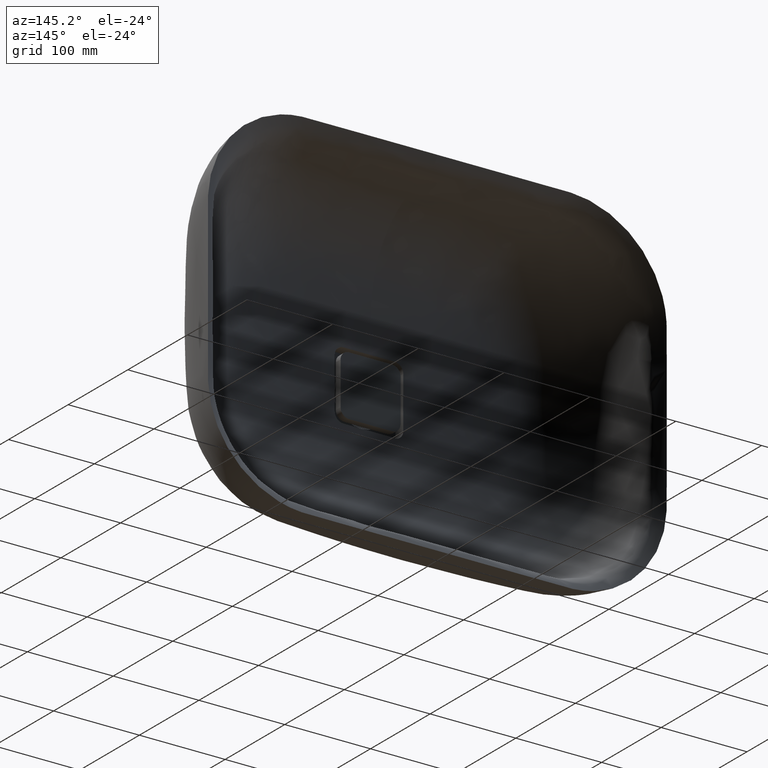
[diagram: clean part render]
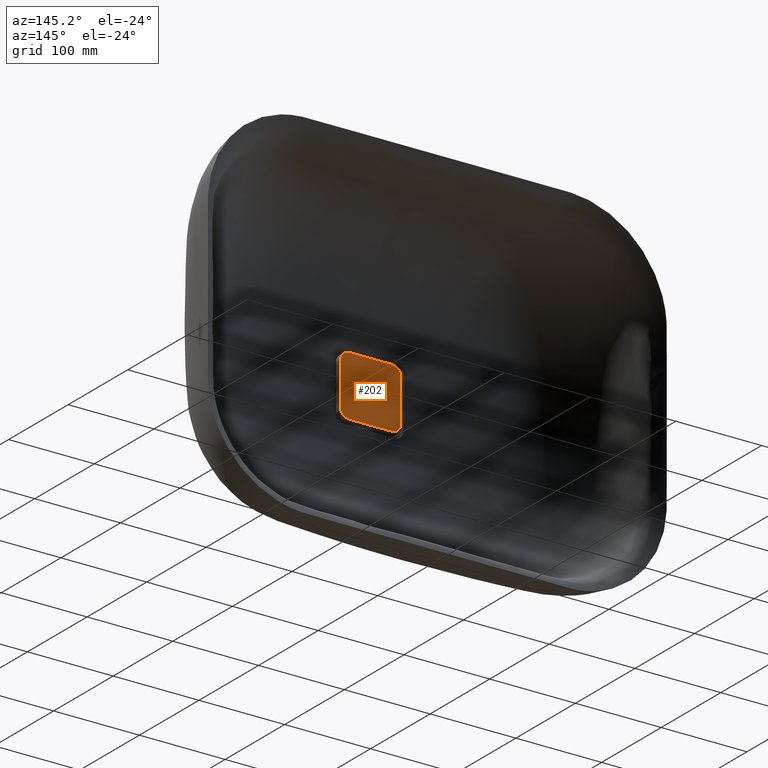
[diagram: same view with one face highlighted and labeled with its STEP entity id]
A machine part, auxiliary view. The second image highlights one B-rep face of the part: STEP entity #202.
In plain terms, the highlighted planar face has unit normal (0, -1, 0).
Its self-contained STEP definition (entity closure, byte-faithful):
#202 = ADVANCED_FACE ( 'NONE', ( #13835 ), #9818, .F. ) ;
#451 = AXIS2_PLACEMENT_3D ( 'NONE', #3241, #4367, #9676 ) ;
#725 = EDGE_CURVE ( 'NONE', #4211, #11059, #13308, .T. ) ;
#1081 = CARTESIAN_POINT ( 'NONE',  ( 35.00000000000007100, -111.9999999999998400, -24.99999999999943900 ) ) ;
#1082 = AXIS2_PLACEMENT_3D ( 'NONE', #7685, #1114, #8781 ) ;
#1114 = DIRECTION ( 'NONE',  ( 0.0000000000000000000, 1.000000000000000000, -0.0000000000000000000 ) ) ;
#1600 = CARTESIAN_POINT ( 'NONE',  ( -24.99999999999985400, -111.9999999999998400, 35.00000000000053300 ) ) ;
#1643 = ORIENTED_EDGE ( 'NONE', *, *, #13752, .T. ) ;
#2488 = ORIENTED_EDGE ( 'NONE', *, *, #725, .T. ) ;
#2506 = CARTESIAN_POINT ( 'NONE',  ( 25.00000000000000700, -111.9999999999998400, -34.99999999999950300 ) ) ;
#2722 = ORIENTED_EDGE ( 'NONE', *, *, #7427, .T. ) ;
#3129 = EDGE_CURVE ( 'NONE', #4016, #5617, #12514, .T. ) ;
#3163 = CARTESIAN_POINT ( 'NONE',  ( -34.99999999999992200, -111.9999999999998400, 25.00000000000041200 ) ) ;
#3195 = CIRCLE ( 'NONE', #1082, 9.999999999999996400 ) ;
#3241 = CARTESIAN_POINT ( 'NONE',  ( 25.00000000000007800, -111.9999999999998400, -24.99999999999949600 ) ) ;
#3400 = CARTESIAN_POINT ( 'NONE',  ( 25.00000000000007800, -111.9999999999998400, -24.99999999999949600 ) ) ;
#3837 = CARTESIAN_POINT ( 'NONE',  ( -24.99999999999985400, -111.9999999999998400, 35.00000000000053300 ) ) ;
#4016 = VERTEX_POINT ( 'NONE', #10822 ) ;
#4158 = VECTOR ( 'NONE', #6270, 1000.000000000000000 ) ;
#4211 = VERTEX_POINT ( 'NONE', #5620 ) ;
#4215 = CARTESIAN_POINT ( 'NONE',  ( 25.00000000000002100, -111.9999999999998400, 35.00000000000053300 ) ) ;
#4367 = DIRECTION ( 'NONE',  ( 0.0000000000000000000, -1.000000000000000000, 0.0000000000000000000 ) ) ;
#4487 = DIRECTION ( 'NONE',  ( 0.0000000000000000000, 0.0000000000000000000, -1.000000000000000000 ) ) ;
#4700 = VERTEX_POINT ( 'NONE', #4215 ) ;
#4995 = EDGE_LOOP ( 'NONE', ( #1643, #13970, #7450, #6434, #2722, #13610, #13890, #2488 ) ) ;
#5239 = EDGE_CURVE ( 'NONE', #7098, #4700, #9230, .T. ) ;
#5617 = VERTEX_POINT ( 'NONE', #3163 ) ;
#5620 = CARTESIAN_POINT ( 'NONE',  ( 35.00000000000008500, -111.9999999999998400, 25.00000000000041200 ) ) ;
#5808 = CIRCLE ( 'NONE', #5858, 10.00000000000000200 ) ;
#5858 = AXIS2_PLACEMENT_3D ( 'NONE', #13022, #6486, #14118 ) ;
#6270 = DIRECTION ( 'NONE',  ( 1.387778780781449600E-016, 0.0000000000000000000, 1.000000000000000000 ) ) ;
#6345 = VECTOR ( 'NONE', #11476, 1000.000000000000000 ) ;
#6373 = CARTESIAN_POINT ( 'NONE',  ( -24.99999999999994000, -111.9999999999998400, 25.00000000000052200 ) ) ;
#6434 = ORIENTED_EDGE ( 'NONE', *, *, #3129, .T. ) ;
#6455 = EDGE_CURVE ( 'NONE', #13068, #4016, #5808, .T. ) ;
#6486 = DIRECTION ( 'NONE',  ( 0.0000000000000000000, 1.000000000000000000, -0.0000000000000000000 ) ) ;
#6504 = CARTESIAN_POINT ( 'NONE',  ( -24.99999999999985400, -111.9999999999998400, -34.99999999999950300 ) ) ;
#7098 = VERTEX_POINT ( 'NONE', #3837 ) ;
#7427 = EDGE_CURVE ( 'NONE', #5617, #7098, #7661, .T. ) ;
#7450 = ORIENTED_EDGE ( 'NONE', *, *, #6455, .T. ) ;
#7473 = DIRECTION ( 'NONE',  ( 0.0000000000000000000, 0.0000000000000000000, -1.000000000000000000 ) ) ;
#7501 = VECTOR ( 'NONE', #11197, 1000.000000000000000 ) ;
#7596 = DIRECTION ( 'NONE',  ( -1.000000000000000000, -0.0000000000000000000, -0.0000000000000000000 ) ) ;
#7661 = CIRCLE ( 'NONE', #10428, 10.00000000000000000 ) ;
#7685 = CARTESIAN_POINT ( 'NONE',  ( 25.00000000000009200, -111.9999999999998400, 25.00000000000052200 ) ) ;
#7725 = CIRCLE ( 'NONE', #8507, 9.999999999999994700 ) ;
#7754 = VECTOR ( 'NONE', #7596, 1000.000000000000000 ) ;
#8507 = AXIS2_PLACEMENT_3D ( 'NONE', #3400, #11057, #4487 ) ;
#8735 = EDGE_CURVE ( 'NONE', #4700, #4211, #3195, .T. ) ;
#8781 = DIRECTION ( 'NONE',  ( 0.0000000000000000000, 0.0000000000000000000, -1.000000000000000000 ) ) ;
#9230 = LINE ( 'NONE', #1600, #6345 ) ;
#9676 = DIRECTION ( 'NONE',  ( 0.0000000000000000000, -0.0000000000000000000, -1.000000000000000000 ) ) ;
#9818 = PLANE ( 'NONE',  #451 ) ;
#10298 = LINE ( 'NONE', #6504, #7754 ) ;
#10428 = AXIS2_PLACEMENT_3D ( 'NONE', #6373, #14005, #7473 ) ;
#10526 = CARTESIAN_POINT ( 'NONE',  ( 35.00000000000007100, -111.9999999999998400, -24.99999999999943900 ) ) ;
#10719 = VERTEX_POINT ( 'NONE', #2506 ) ;
#10822 = CARTESIAN_POINT ( 'NONE',  ( -34.99999999999995000, -111.9999999999998400, -24.99999999999943900 ) ) ;
#11057 = DIRECTION ( 'NONE',  ( 0.0000000000000000000, 1.000000000000000000, -0.0000000000000000000 ) ) ;
#11059 = VERTEX_POINT ( 'NONE', #10526 ) ;
#11197 = DIRECTION ( 'NONE',  ( -2.775557561562898700E-016, -0.0000000000000000000, -1.000000000000000000 ) ) ;
#11476 = DIRECTION ( 'NONE',  ( 1.000000000000000000, 0.0000000000000000000, 0.0000000000000000000 ) ) ;
#12281 = EDGE_CURVE ( 'NONE', #10719, #13068, #10298, .T. ) ;
#12514 = LINE ( 'NONE', #12803, #4158 ) ;
#12803 = CARTESIAN_POINT ( 'NONE',  ( -34.99999999999995000, -111.9999999999998400, -24.99999999999943900 ) ) ;
#12889 = CARTESIAN_POINT ( 'NONE',  ( -24.99999999999985400, -111.9999999999998400, -34.99999999999950300 ) ) ;
#13022 = CARTESIAN_POINT ( 'NONE',  ( -24.99999999999994000, -111.9999999999998400, -24.99999999999949600 ) ) ;
#13068 = VERTEX_POINT ( 'NONE', #12889 ) ;
#13308 = LINE ( 'NONE', #1081, #7501 ) ;
#13610 = ORIENTED_EDGE ( 'NONE', *, *, #5239, .T. ) ;
#13752 = EDGE_CURVE ( 'NONE', #11059, #10719, #7725, .T. ) ;
#13835 = FACE_OUTER_BOUND ( 'NONE', #4995, .T. ) ;
#13890 = ORIENTED_EDGE ( 'NONE', *, *, #8735, .T. ) ;
#13970 = ORIENTED_EDGE ( 'NONE', *, *, #12281, .T. ) ;
#14005 = DIRECTION ( 'NONE',  ( 0.0000000000000000000, 1.000000000000000000, -0.0000000000000000000 ) ) ;
#14118 = DIRECTION ( 'NONE',  ( 0.0000000000000000000, 0.0000000000000000000, -1.000000000000000000 ) ) ;